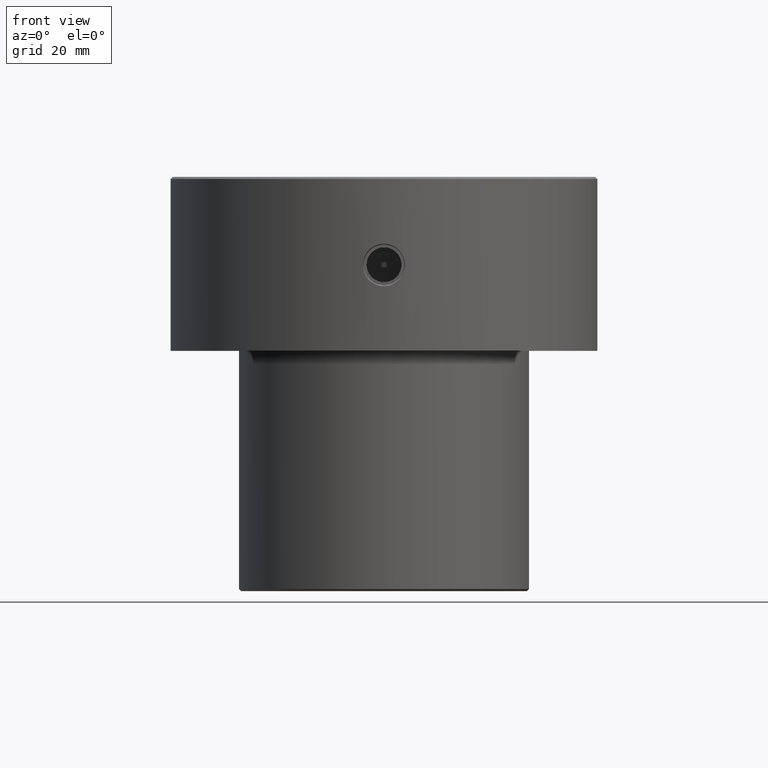
[diagram: clean part render]
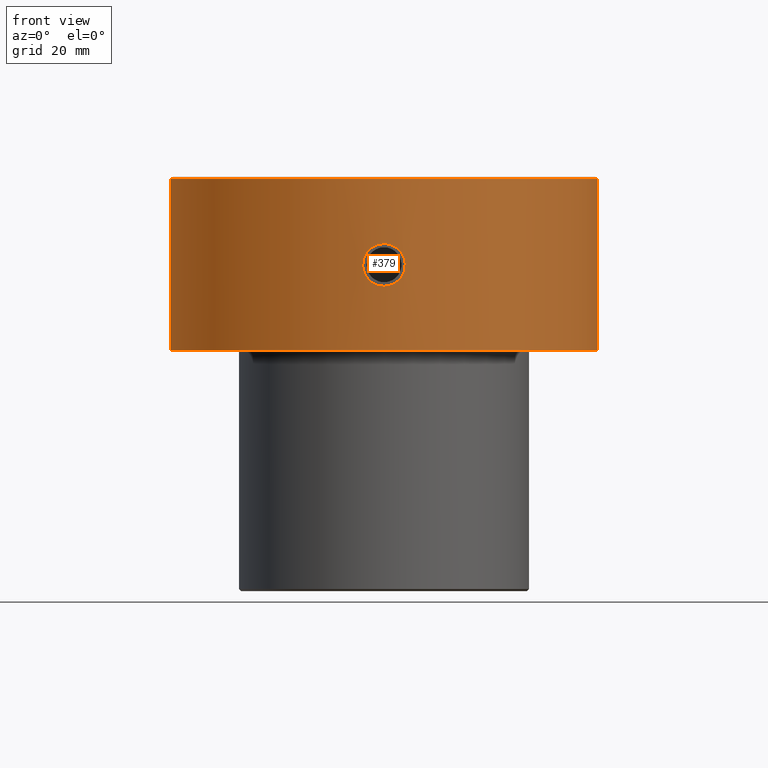
[diagram: same view with one face highlighted and labeled with its STEP entity id]
A machine part, front view. The second image highlights one B-rep face of the part: STEP entity #379.
In plain terms, the highlighted cylindrical surface (partial cylindrical patch) has radius 51.5 mm, axis along (-0, -0, 1).
Its self-contained STEP definition (entity closure, byte-faithful):
#1 = CARTESIAN_POINT ( 'NONE',  ( 1.166101079403363050, -51.48706274633448032, -16.23811354126406670 ) ) ;
#2 = CARTESIAN_POINT ( 'NONE',  ( -4.455594510083999538, -51.30723595572462870, -18.67032462210925203 ) ) ;
#3 = VERTEX_POINT ( 'NONE', #488 ) ;
#12 = CARTESIAN_POINT ( 'NONE',  ( -4.873419098527694615, -51.26905909255087579, -19.59290484552858302 ) ) ;
#16 = EDGE_CURVE ( 'NONE', #21, #126, #446, .T. ) ;
#21 = VERTEX_POINT ( 'NONE', #86 ) ;
#24 = ORIENTED_EDGE ( 'NONE', *, *, #135, .T. ) ;
#54 = AXIS2_PLACEMENT_3D ( 'NONE', #815, #68, #1022 ) ;
#68 = DIRECTION ( 'NONE',  ( 0.000000000000000000, 0.000000000000000000, -1.000000000000000000 ) ) ;
#86 = CARTESIAN_POINT ( 'NONE',  ( -51.50000000000000000, 6.306931015608868807E-15, -42.00000000000000000 ) ) ;
#87 = CARTESIAN_POINT ( 'NONE',  ( -2.276262927525767310, -51.44988500894436356, -16.63634664762538407 ) ) ;
#91 = CARTESIAN_POINT ( 'NONE',  ( -3.871928745888957746, -51.35480031565879955, -17.85409872166449219 ) ) ;
#98 = CARTESIAN_POINT ( 'NONE',  ( 5.004541009587042844, -51.25627417810104447, -22.41700138948911913 ) ) ;
#102 = CARTESIAN_POINT ( 'NONE',  ( 5.135613818990137247, -51.24329683683077263, -20.90997058817930210 ) ) ;
#104 = CARTESIAN_POINT ( 'NONE',  ( -3.133331818491418730, -51.40534713884964191, -17.16107801846559511 ) ) ;
#126 = VERTEX_POINT ( 'NONE', #241 ) ;
#135 = EDGE_CURVE ( 'NONE', #3, #140, #798, .T. ) ;
#140 = VERTEX_POINT ( 'NONE', #1175 ) ;
#152 = VERTEX_POINT ( 'NONE', #400 ) ;
#182 = CARTESIAN_POINT ( 'NONE',  ( 4.615458871489047432, -51.29292689371413161, -23.53081845748871359 ) ) ;
#188 = CARTESIAN_POINT ( 'NONE',  ( 4.084600155122266152, -51.33810581497413494, -18.11413077232103319 ) ) ;
#191 = CARTESIAN_POINT ( 'NONE',  ( 4.457834078572474823, -51.30704417937777606, -18.67399679769003029 ) ) ;
#196 = CARTESIAN_POINT ( 'NONE',  ( 1.331544956519863598, -51.48303611421331993, -16.27964254438147762 ) ) ;
#202 = CARTESIAN_POINT ( 'NONE',  ( 2.121122820814869137, -51.45653307363946993, -25.93719350975683113 ) ) ;
#213 = DIRECTION ( 'NONE',  ( -0.000000000000000000, -0.000000000000000000, 1.000000000000000000 ) ) ;
#234 = AXIS2_PLACEMENT_3D ( 'NONE', #481, #292, #1163 ) ;
#241 = CARTESIAN_POINT ( 'NONE',  ( -51.50000000000000000, 6.306931015608868807E-15, -0.5000000000000004441 ) ) ;
#246 = CARTESIAN_POINT ( 'NONE',  ( -5.135571099062696376, -51.24330111829166157, -20.91314367667845531 ) ) ;
#273 = CARTESIAN_POINT ( 'NONE',  ( 1.654020674870432028, -51.47368487990468111, -16.37775195547085971 ) ) ;
#278 = CARTESIAN_POINT ( 'NONE',  ( 5.102417383276221408, -51.24665491347251844, -20.57613492145341283 ) ) ;
#284 = CARTESIAN_POINT ( 'NONE',  ( 4.866411394179904981, -51.26958591014203392, -22.90220319035053365 ) ) ;
#287 = CARTESIAN_POINT ( 'NONE',  ( 6.298815310959837949E-16, -51.50000000000000000, -16.10662700000000314 ) ) ;
#292 = DIRECTION ( 'NONE',  ( -0.000000000000000000, -0.000000000000000000, 1.000000000000000000 ) ) ;
#300 = EDGE_CURVE ( 'NONE', #500, #152, #305, .T. ) ;
#305 = B_SPLINE_CURVE_WITH_KNOTS ( 'NONE', 3,
 ( #370, #1058, #1164, #972, #959, #955, #87, #967, #767, #104, #873, #91, #864, #2, #382, #12, #392, #780, #246, #629, #442, #541, #438, #1045, #634, #729, #734, #338, #912, #1210, #529, #845, #827, #747, #1135, #720 ),
 .UNSPECIFIED., .F., .F.,
 ( 4, 2, 2, 2, 2, 2, 2, 2, 2, 2, 2, 2, 2, 2, 2, 2, 2, 4 ),
 ( 0.02019024682009542063, 0.02119471988690419320, 0.02219919295371296925, 0.02270142948711735553, 0.02320366602052174529, 0.02420813908733053174, 0.02521261215413931472, 0.02621708522094810118, 0.02722155828775688763, 0.02822603135456567408, 0.02923050442137446053, 0.03023497748818324699, 0.03123945055499203344, 0.03224392362180081989, 0.03324839668860960634, 0.03425286975541839279, 0.03525734282222717925, 0.03626181588903596570 ),
 .UNSPECIFIED. ) ;
#314 = EDGE_CURVE ( 'NONE', #140, #126, #641, .T. ) ;
#321 = CARTESIAN_POINT ( 'NONE',  ( 6.298815310959837949E-16, -51.50000000000000000, -16.10662700000000314 ) ) ;
#338 = CARTESIAN_POINT ( 'NONE',  ( -3.392389233153937589, -51.38870597212261515, -25.12635399936055691 ) ) ;
#366 = CARTESIAN_POINT ( 'NONE',  ( 4.085644507848206430, -51.33802044068998782, -24.38439208705906225 ) ) ;
#369 = CARTESIAN_POINT ( 'NONE',  ( 0.3358835663762500534, -51.50000000000001421, -16.10662700000000314 ) ) ;
#370 = CARTESIAN_POINT ( 'NONE',  ( 6.298815310959837949E-16, -51.50000000000000000, -16.10662700000000314 ) ) ;
#377 = CARTESIAN_POINT ( 'NONE',  ( 3.136210703289033397, -51.40518342140642005, -25.33692630218639508 ) ) ;
#379 = ADVANCED_FACE ( 'NONE', ( #523, #465 ), #863, .T. ) ;
#382 = CARTESIAN_POINT ( 'NONE',  ( -4.616570975055003245, -51.29282509647570976, -18.97167582135471875 ) ) ;
#389 = EDGE_CURVE ( 'NONE', #152, #500, #983, .T. ) ;
#392 = CARTESIAN_POINT ( 'NONE',  ( -4.970545045048587518, -51.25961420767220744, -19.91315521511948816 ) ) ;
#400 = CARTESIAN_POINT ( 'NONE',  ( 1.048222593639576067E-21, -51.50000000000000000, -26.39337300000000042 ) ) ;
#436 = AXIS2_PLACEMENT_3D ( 'NONE', #930, #1122, #559 ) ;
#438 = CARTESIAN_POINT ( 'NONE',  ( -4.874176289879716961, -51.26898510490826055, -22.90456670123846195 ) ) ;
#442 = CARTESIAN_POINT ( 'NONE',  ( -5.103538412688853221, -51.24654388850566988, -21.91707525582282656 ) ) ;
#446 = LINE ( 'NONE', #750, #761 ) ;
#465 = FACE_BOUND ( 'NONE', #672, .T. ) ;
#470 = CARTESIAN_POINT ( 'NONE',  ( 3.394642827361414206, -51.38854838561958616, -25.12414554227154539 ) ) ;
#481 = CARTESIAN_POINT ( 'NONE',  ( 0.000000000000000000, 0.000000000000000000, 0.000000000000000000 ) ) ;
#488 = CARTESIAN_POINT ( 'NONE',  ( 51.50000000000000000, 0.000000000000000000, -42.00000000000000000 ) ) ;
#499 = ORIENTED_EDGE ( 'NONE', *, *, #300, .F. ) ;
#500 = VERTEX_POINT ( 'NONE', #321 ) ;
#523 = FACE_OUTER_BOUND ( 'NONE', #992, .T. ) ;
#529 = CARTESIAN_POINT ( 'NONE',  ( -2.276103841329510047, -51.45061589025135618, -25.87292166544103367 ) ) ;
#541 = CARTESIAN_POINT ( 'NONE',  ( -4.972038158280625453, -51.25946938272897313, -22.58188047283348254 ) ) ;
#559 = DIRECTION ( 'NONE',  ( 1.000000000000000000, 0.000000000000000000, 0.000000000000000000 ) ) ;
#563 = CIRCLE ( 'NONE', #436, 51.50000000000000000 ) ;
#564 = CARTESIAN_POINT ( 'NONE',  ( 4.971852313927572986, -51.25948680529477741, -19.91831370292505454 ) ) ;
#577 = CARTESIAN_POINT ( 'NONE',  ( 0.3353013208440320803, -51.50000000000000000, -26.39337300000000042 ) ) ;
#584 = CARTESIAN_POINT ( 'NONE',  ( 4.809111397820574396, -51.27500999554197136, -23.06273107317452187 ) ) ;
#590 = CARTESIAN_POINT ( 'NONE',  ( 2.272775390774277149, -51.45004000926935106, -25.86538700450402928 ) ) ;
#629 = CARTESIAN_POINT ( 'NONE',  ( -5.135801780001337136, -51.24327799907001690, -21.58331015971613454 ) ) ;
#634 = CARTESIAN_POINT ( 'NONE',  ( -4.459652610896620573, -51.30688883444945958, -23.82304282523870143 ) ) ;
#641 = CIRCLE ( 'NONE', #54, 51.50000000000000000 ) ;
#668 = CARTESIAN_POINT ( 'NONE',  ( 4.615444507740382285, -51.29292706423705539, -18.96935145740248529 ) ) ;
#672 = EDGE_LOOP ( 'NONE', ( #1061, #499 ) ) ;
#673 = CARTESIAN_POINT ( 'NONE',  ( 1.048222593639576067E-21, -51.50000000000000000, -26.39337300000000042 ) ) ;
#683 = CARTESIAN_POINT ( 'NONE',  ( 5.102355235093170904, -51.24666100736852314, -21.92415948591494868 ) ) ;
#702 = VECTOR ( 'NONE', #213, 1000.000000000000000 ) ;
#720 = CARTESIAN_POINT ( 'NONE',  ( 1.048222593639576067E-21, -51.50000000000000000, -26.39337300000000042 ) ) ;
#729 = CARTESIAN_POINT ( 'NONE',  ( -4.084952459583112372, -51.33808047330343527, -24.38557191876200392 ) ) ;
#730 = ORIENTED_EDGE ( 'NONE', *, *, #16, .F. ) ;
#734 = CARTESIAN_POINT ( 'NONE',  ( -3.870388291433632499, -51.35491700579432006, -24.64766394908491520 ) ) ;
#747 = CARTESIAN_POINT ( 'NONE',  ( -0.6752129084959268557, -51.49663065334000578, -26.35984570715628550 ) ) ;
#750 = CARTESIAN_POINT ( 'NONE',  ( -51.50000000000000000, 6.306931015608868807E-15, 0.000000000000000000 ) ) ;
#753 = CARTESIAN_POINT ( 'NONE',  ( 1.811917442048592397, -51.46834851635972541, -16.43444993656066089 ) ) ;
#758 = CARTESIAN_POINT ( 'NONE',  ( 2.569935440570200846, -51.43605308306254642, -25.70627989238121103 ) ) ;
#761 = VECTOR ( 'NONE', #953, 1000.000000000000000 ) ;
#765 = CARTESIAN_POINT ( 'NONE',  ( 3.868875284666686731, -51.35502223870823713, -24.64913067251421097 ) ) ;
#767 = CARTESIAN_POINT ( 'NONE',  ( -2.716438236506895976, -51.42849729473772413, -16.88179572973227494 ) ) ;
#770 = CARTESIAN_POINT ( 'NONE',  ( 1.334615805379071318, -51.48377902741052736, -26.22826705002438175 ) ) ;
#780 = CARTESIAN_POINT ( 'NONE',  ( -5.102074559861904390, -51.24668966821032967, -20.57299764770509398 ) ) ;
#798 = LINE ( 'NONE', #1192, #702 ) ;
#812 = ORIENTED_EDGE ( 'NONE', *, *, #314, .T. ) ;
#815 = CARTESIAN_POINT ( 'NONE',  ( 0.000000000000000000, 0.000000000000000000, -0.5000000000000004441 ) ) ;
#827 = CARTESIAN_POINT ( 'NONE',  ( -1.335029987352562175, -51.48375060202188536, -26.22796783234396045 ) ) ;
#845 = CARTESIAN_POINT ( 'NONE',  ( -1.655189781649638592, -51.47433215661397554, -26.13054333015325170 ) ) ;
#855 = CARTESIAN_POINT ( 'NONE',  ( 1.657110490166086914, -51.47426363476713362, -26.12980794330655954 ) ) ;
#863 = CYLINDRICAL_SURFACE ( 'NONE', #234, 51.50000000000000000 ) ;
#864 = CARTESIAN_POINT ( 'NONE',  ( -4.083870080060343355, -51.33816113792820346, -18.11335087147658740 ) ) ;
#867 = ORIENTED_EDGE ( 'NONE', *, *, #1038, .T. ) ;
#871 = CARTESIAN_POINT ( 'NONE',  ( 3.868090047908823159, -51.35507909105496793, -17.85004502327221942 ) ) ;
#873 = CARTESIAN_POINT ( 'NONE',  ( -3.394174496679403408, -51.38858751863610053, -17.37521538122372178 ) ) ;
#912 = CARTESIAN_POINT ( 'NONE',  ( -3.133535059618951291, -51.40533600573779438, -25.33878848935032124 ) ) ;
#930 = CARTESIAN_POINT ( 'NONE',  ( 0.000000000000000000, 0.000000000000000000, -42.00000000000000000 ) ) ;
#950 = CARTESIAN_POINT ( 'NONE',  ( 3.136185333612287351, -51.40519293067121254, -17.16291568919610100 ) ) ;
#953 = DIRECTION ( 'NONE',  ( -0.000000000000000000, -0.000000000000000000, 1.000000000000000000 ) ) ;
#955 = CARTESIAN_POINT ( 'NONE',  ( -2.122390397132325468, -51.45648428634891758, -16.56333713622720438 ) ) ;
#959 = CARTESIAN_POINT ( 'NONE',  ( -1.654922887784929353, -51.47434792857442432, -16.36927503999904232 ) ) ;
#966 = CARTESIAN_POINT ( 'NONE',  ( 3.394848946332763351, -51.38853247271054414, -17.37609873495068413 ) ) ;
#967 = CARTESIAN_POINT ( 'NONE',  ( -2.572853543023277734, -51.43590637866683579, -16.79541911679499222 ) ) ;
#971 = CARTESIAN_POINT ( 'NONE',  ( 5.135759432686824333, -51.24328224318696101, -21.58781631127578393 ) ) ;
#972 = CARTESIAN_POINT ( 'NONE',  ( -1.334511350930534856, -51.48375855101124898, -16.27195165724317860 ) ) ;
#983 = B_SPLINE_CURVE_WITH_KNOTS ( 'NONE', 3,
 ( #673, #577, #1073, #770, #855, #202, #590, #758, #1057, #377, #470, #765, #366, #1154, #182, #584, #284, #1146, #98, #683, #971, #102, #278, #564, #1063, #668, #191, #188, #871, #966, #950, #1156, #1066, #753, #273, #196, #1, #1142, #369, #287 ),
 .UNSPECIFIED., .F., .F.,
 ( 4, 2, 2, 2, 2, 2, 2, 2, 2, 2, 2, 2, 2, 2, 2, 2, 2, 2, 2, 4 ),
 ( 0.004107745889543262287, 0.005112902197702762913, 0.006118058505862263539, 0.006620636659942015154, 0.007123214814021767635, 0.008128371122181272598, 0.009133527430340777561, 0.01013868373850028252, 0.01064126189258003501, 0.01114384004665978575, 0.01214899635481930112, 0.01315415266297881650, 0.01415930897113833187, 0.01516446527929784724, 0.01616962158745736261, 0.01717477789561687798, 0.01817993420377638988, 0.01868251235785614930, 0.01918509051193590526, 0.02019024682009542063 ),
 .UNSPECIFIED. ) ;
#992 = EDGE_LOOP ( 'NONE', ( #730, #867, #24, #812 ) ) ;
#1022 = DIRECTION ( 'NONE',  ( 1.000000000000000000, 0.000000000000000000, 0.000000000000000000 ) ) ;
#1038 = EDGE_CURVE ( 'NONE', #21, #3, #563, .T. ) ;
#1045 = CARTESIAN_POINT ( 'NONE',  ( -4.618922364095463529, -51.29261140151269416, -23.52332559415824065 ) ) ;
#1057 = CARTESIAN_POINT ( 'NONE',  ( 2.716055077494536008, -51.42852049064780573, -25.61849436601665531 ) ) ;
#1058 = CARTESIAN_POINT ( 'NONE',  ( -0.3356552540832114517, -51.50000000000000000, -16.10662700000000669 ) ) ;
#1061 = ORIENTED_EDGE ( 'NONE', *, *, #389, .F. ) ;
#1063 = CARTESIAN_POINT ( 'NONE',  ( 4.872762613667714682, -51.26912208466235654, -19.59091961400270065 ) ) ;
#1066 = CARTESIAN_POINT ( 'NONE',  ( 2.275792585293514136, -51.45062238089825257, -16.62701780103406080 ) ) ;
#1073 = CARTESIAN_POINT ( 'NONE',  ( 0.6693026806619063462, -51.49672549019852141, -26.36080848415118894 ) ) ;
#1122 = DIRECTION ( 'NONE',  ( -0.000000000000000000, -0.000000000000000000, 1.000000000000000000 ) ) ;
#1135 = CARTESIAN_POINT ( 'NONE',  ( -0.3350734043244900651, -51.50000000000000000, -26.39337299999999331 ) ) ;
#1142 = CARTESIAN_POINT ( 'NONE',  ( 0.6694074120081875412, -51.49671427971136950, -16.13930995566505899 ) ) ;
#1146 = CARTESIAN_POINT ( 'NONE',  ( 4.963928581033117737, -51.26023617090775986, -22.57976408175084515 ) ) ;
#1154 = CARTESIAN_POINT ( 'NONE',  ( 4.457634637478083306, -51.30705923410508262, -23.82621273787369631 ) ) ;
#1156 = CARTESIAN_POINT ( 'NONE',  ( 2.573071245024807219, -51.43645422318999039, -16.78582650585409297 ) ) ;
#1163 = DIRECTION ( 'NONE',  ( 1.000000000000000000, 0.000000000000000000, 0.000000000000000000 ) ) ;
#1164 = CARTESIAN_POINT ( 'NONE',  ( -0.6764116674713784860, -51.49660942567671640, -16.14037076350564703 ) ) ;
#1175 = CARTESIAN_POINT ( 'NONE',  ( 51.50000000000000000, 0.000000000000000000, -0.5000000000000004441 ) ) ;
#1192 = CARTESIAN_POINT ( 'NONE',  ( 51.50000000000000000, 0.000000000000000000, 0.000000000000000000 ) ) ;
#1210 = CARTESIAN_POINT ( 'NONE',  ( -2.577214110619729048, -51.43622827599907055, -25.71146961298348899 ) ) ;